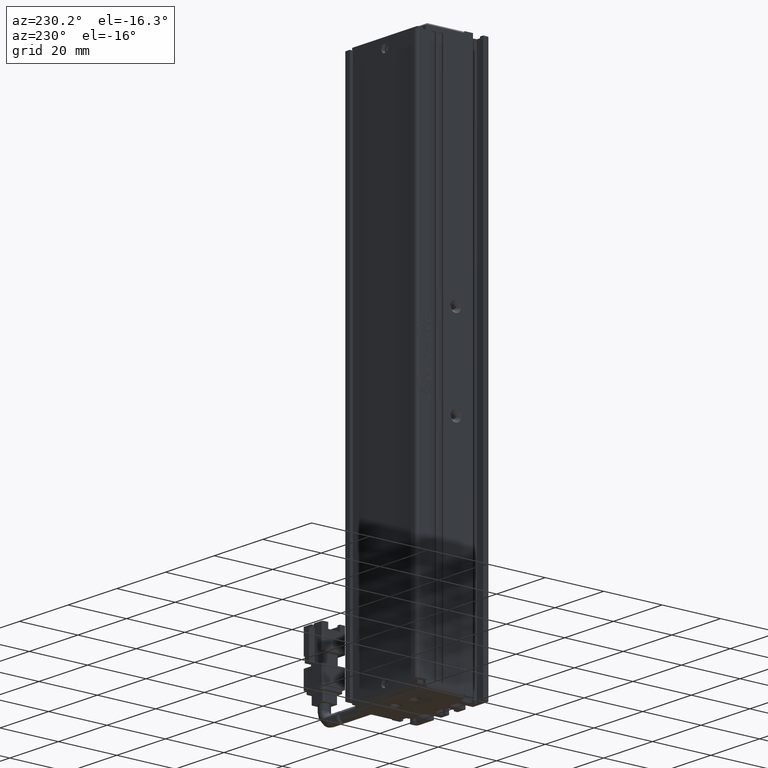
[diagram: clean part render]
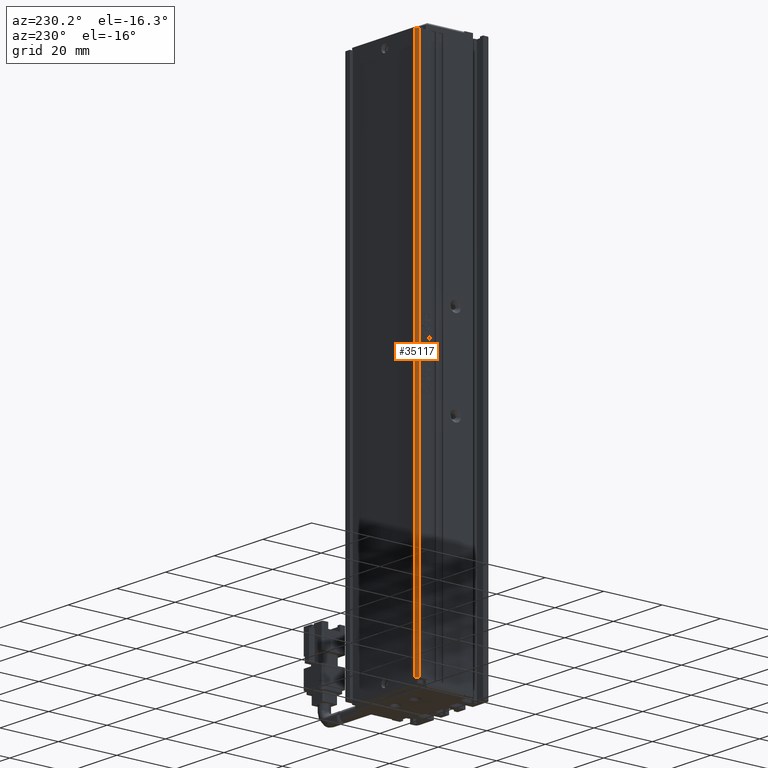
[diagram: same view with one face highlighted and labeled with its STEP entity id]
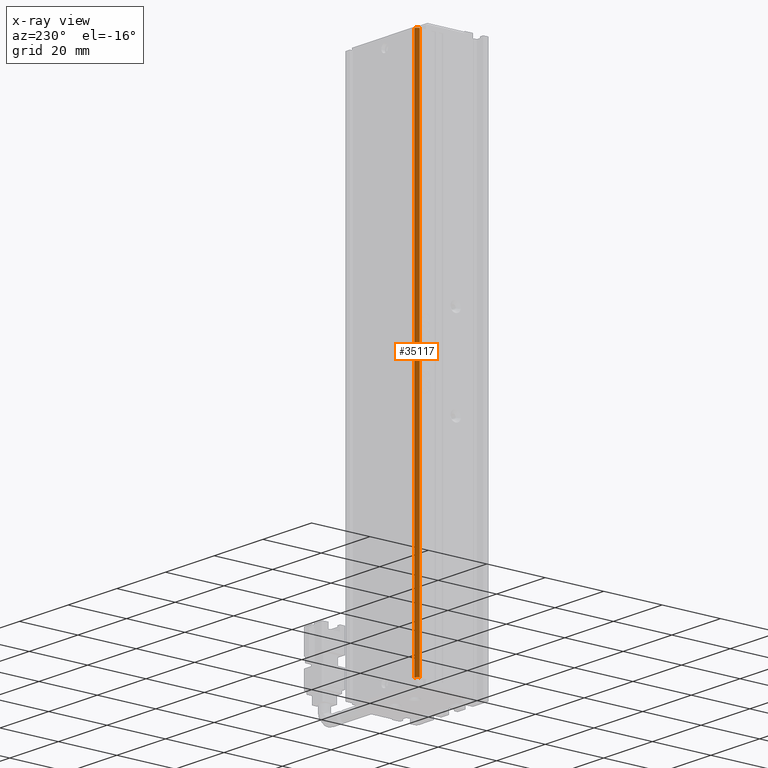
[diagram: x-ray of the same camera — body ghosted, the highlighted face saturated]
A machine part, auxiliary view. The second image highlights one B-rep face of the part: STEP entity #35117.
The next image is the same camera in x-ray: the body ghosted, the highlighted face saturated — about 0% of this face is hidden behind the body in this view.
In plain terms, the highlighted cylindrical surface (edge-blend (fillet) strip) has radius 1 mm, axis along (-0, -0, -1).
Its self-contained STEP definition (entity closure, byte-faithful):
#950 = DIRECTION ( 'NONE',  ( -1.000000000000000000, 0.0000000000000000000, 0.0000000000000000000 ) ) ;
#1259 = ORIENTED_EDGE ( 'NONE', *, *, #42536, .T. ) ;
#1340 = VERTEX_POINT ( 'NONE', #13927 ) ;
#1449 = VERTEX_POINT ( 'NONE', #18374 ) ;
#3084 = AXIS2_PLACEMENT_3D ( 'NONE', #30750, #30903, #950 ) ;
#9067 = EDGE_CURVE ( 'NONE', #20304, #31115, #10340, .T. ) ;
#10340 = CIRCLE ( 'NONE', #36037, 0.9999999999999974500 ) ;
#10432 = DIRECTION ( 'NONE',  ( 0.0000000000000000000, 0.0000000000000000000, 1.000000000000000000 ) ) ;
#10435 = CARTESIAN_POINT ( 'NONE',  ( 25.92537974683541800, 34.69594479660387500, -26.00000000000001100 ) ) ;
#12389 = CARTESIAN_POINT ( 'NONE',  ( 25.92537974683541800, 34.69594479660387500, -24.00000000000000700 ) ) ;
#13927 = CARTESIAN_POINT ( 'NONE',  ( 26.92537974683542100, 35.69594479660387500, -204.0000000000000300 ) ) ;
#15994 = DIRECTION ( 'NONE',  ( -0.0000000000000000000, -0.0000000000000000000, -1.000000000000000000 ) ) ;
#16157 = CARTESIAN_POINT ( 'NONE',  ( 26.92537974683542100, 34.69594479660387500, -26.00000000000001100 ) ) ;
#17368 = LINE ( 'NONE', #18466, #34082 ) ;
#17787 = ORIENTED_EDGE ( 'NONE', *, *, #26148, .F. ) ;
#18374 = CARTESIAN_POINT ( 'NONE',  ( 25.92537974683541800, 34.69594479660387500, -204.0000000000000300 ) ) ;
#18466 = CARTESIAN_POINT ( 'NONE',  ( 26.92537974683542100, 35.69594479660387500, -24.00000000000000700 ) ) ;
#19906 = CARTESIAN_POINT ( 'NONE',  ( 26.92537974683542100, 35.69594479660387500, -26.00000000000001100 ) ) ;
#20304 = VERTEX_POINT ( 'NONE', #10435 ) ;
#21855 = DIRECTION ( 'NONE',  ( -0.0000000000000000000, -0.0000000000000000000, -1.000000000000000000 ) ) ;
#24797 = EDGE_LOOP ( 'NONE', ( #1259, #17787, #32604, #42134 ) ) ;
#26148 = EDGE_CURVE ( 'NONE', #20304, #1449, #37951, .T. ) ;
#30519 = CARTESIAN_POINT ( 'NONE',  ( 26.92537974683542100, 34.69594479660387500, -204.0000000000000300 ) ) ;
#30750 = CARTESIAN_POINT ( 'NONE',  ( 26.92537974683542100, 34.69594479660387500, -24.00000000000000700 ) ) ;
#30903 = DIRECTION ( 'NONE',  ( -0.0000000000000000000, -0.0000000000000000000, -1.000000000000000000 ) ) ;
#31115 = VERTEX_POINT ( 'NONE', #19906 ) ;
#32223 = FACE_OUTER_BOUND ( 'NONE', #24797, .T. ) ;
#32380 = DIRECTION ( 'NONE',  ( -0.0000000000000000000, -0.0000000000000000000, -1.000000000000000000 ) ) ;
#32604 = ORIENTED_EDGE ( 'NONE', *, *, #9067, .T. ) ;
#32801 = DIRECTION ( 'NONE',  ( -1.000000000000000000, 0.0000000000000000000, 0.0000000000000000000 ) ) ;
#33853 = DIRECTION ( 'NONE',  ( -1.000000000000000000, 0.0000000000000000000, 0.0000000000000000000 ) ) ;
#34082 = VECTOR ( 'NONE', #21855, 1000.000000000000000 ) ;
#35117 = ADVANCED_FACE ( 'NONE', ( #32223 ), #36911, .T. ) ;
#36037 = AXIS2_PLACEMENT_3D ( 'NONE', #16157, #15994, #32801 ) ;
#36911 = CYLINDRICAL_SURFACE ( 'NONE', #3084, 0.9999999999999974500 ) ;
#37500 = CIRCLE ( 'NONE', #38928, 0.9999999999999974500 ) ;
#37951 = LINE ( 'NONE', #12389, #38994 ) ;
#38928 = AXIS2_PLACEMENT_3D ( 'NONE', #30519, #10432, #33853 ) ;
#38994 = VECTOR ( 'NONE', #32380, 1000.000000000000000 ) ;
#41406 = EDGE_CURVE ( 'NONE', #31115, #1340, #17368, .T. ) ;
#42134 = ORIENTED_EDGE ( 'NONE', *, *, #41406, .T. ) ;
#42536 = EDGE_CURVE ( 'NONE', #1340, #1449, #37500, .T. ) ;